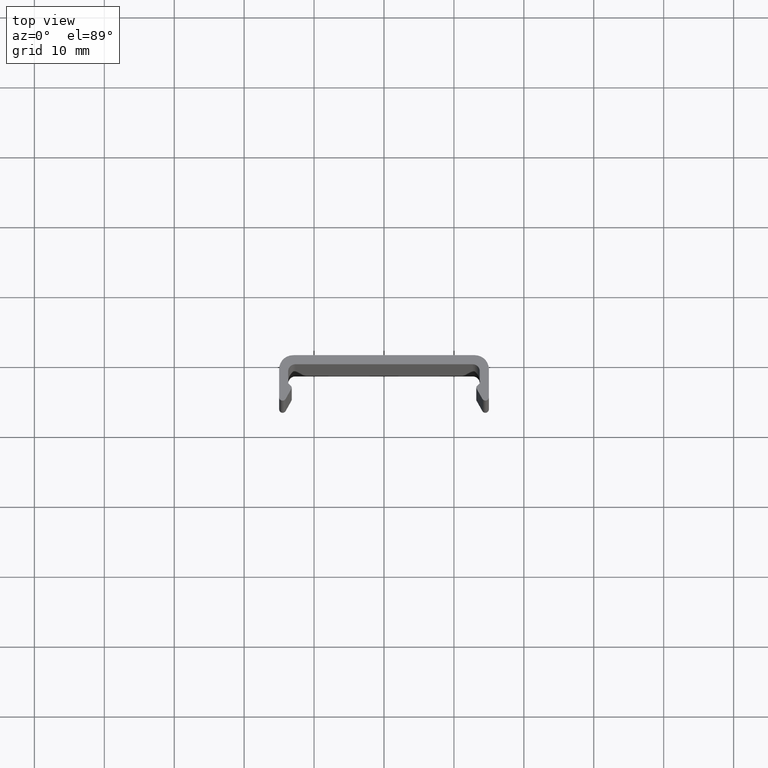
[diagram: clean part render]
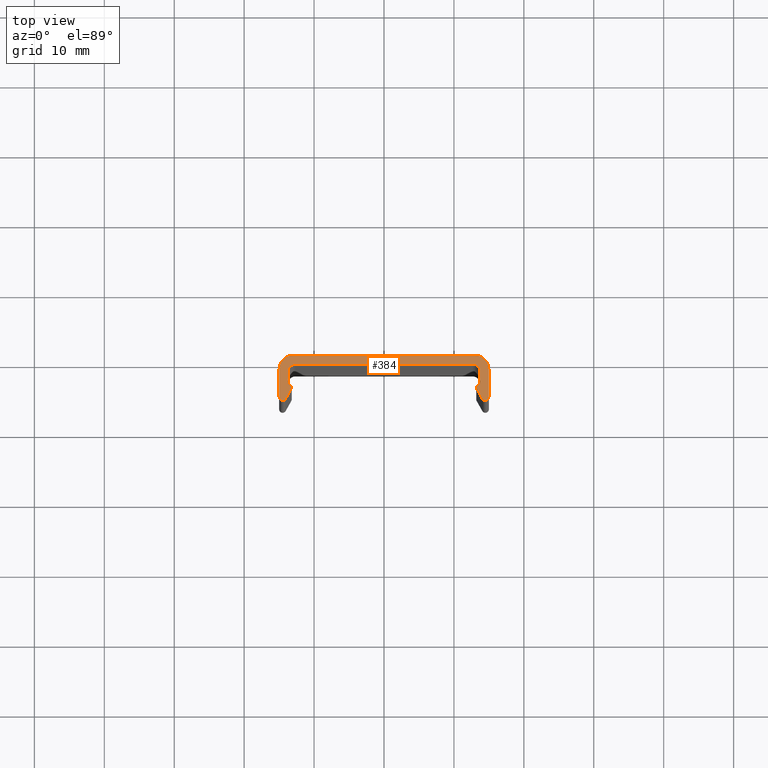
[diagram: same view with one face highlighted and labeled with its STEP entity id]
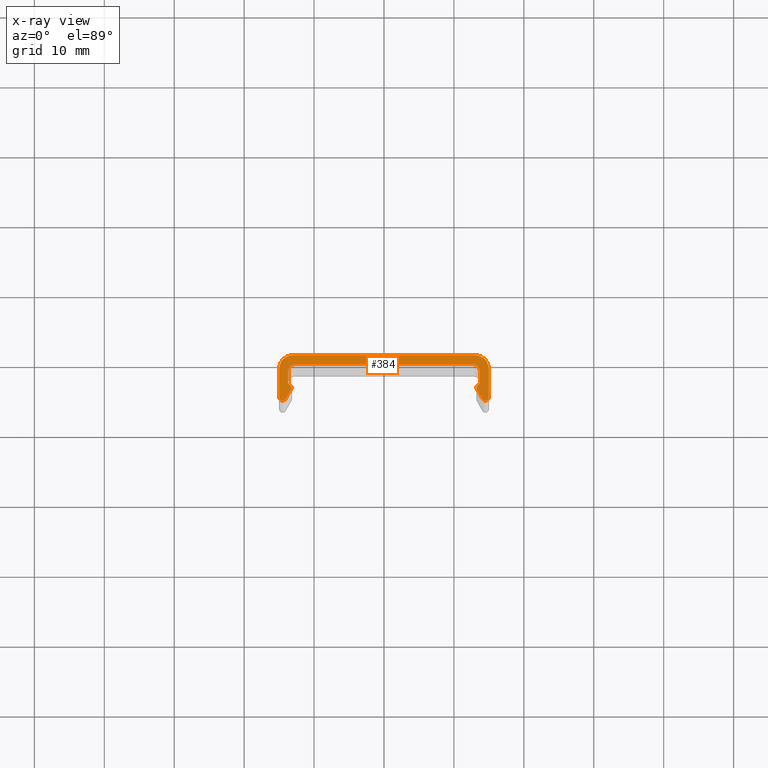
[diagram: x-ray of the same camera — body ghosted, the highlighted face saturated]
A machine part, top view. The second image highlights one B-rep face of the part: STEP entity #384.
The next image is the same camera in x-ray: the body ghosted, the highlighted face saturated — about 0% of this face is hidden behind the body in this view.
In plain terms, the highlighted planar face has unit normal (0, 0, 1).
Its self-contained STEP definition (entity closure, byte-faithful):
#15=CIRCLE('',#389,1.);
#17=CIRCLE('',#394,0.299999999999869);
#19=CIRCLE('',#398,0.499999999999943);
#21=CIRCLE('',#402,2.00000000000017);
#23=CIRCLE('',#405,2.00000000000017);
#25=CIRCLE('',#409,0.499999999999943);
#27=CIRCLE('',#413,0.299999999999869);
#29=CIRCLE('',#418,1.);
#58=FACE_OUTER_BOUND('',#78,.T.);
#78=EDGE_LOOP('',(#335,#336,#337,#338,#339,#340,#341,#342,#343,#344,#345,
#346,#347,#348,#349,#350,#351,#352));
#79=LINE('',#539,#117);
#84=LINE('',#553,#122);
#87=LINE('',#559,#125);
#91=LINE('',#571,#129);
#95=LINE('',#583,#133);
#101=LINE('',#604,#139);
#105=LINE('',#616,#143);
#109=LINE('',#628,#147);
#112=LINE('',#634,#150);
#116=LINE('',#644,#154);
#117=VECTOR('',#427,25.3999999999986);
#122=VECTOR('',#440,1.70573593128281);
#125=VECTOR('',#445,0.582842712478441);
#129=VECTOR('',#457,1.68430994773039);
#133=VECTOR('',#469,4.00000000000333);
#139=VECTOR('',#489,3.99999999998933);
#143=VECTOR('',#501,1.68430994772404);
#147=VECTOR('',#513,0.582842712475961);
#150=VECTOR('',#518,1.7057359312764);
#154=VECTOR('',#532,25.9999999999983);
#155=VERTEX_POINT('',#537);
#156=VERTEX_POINT('',#538);
#159=VERTEX_POINT('',#546);
#161=VERTEX_POINT('',#552);
#163=VERTEX_POINT('',#558);
#165=VERTEX_POINT('',#564);
#167=VERTEX_POINT('',#570);
#169=VERTEX_POINT('',#576);
#171=VERTEX_POINT('',#582);
#173=VERTEX_POINT('',#588);
#175=VERTEX_POINT('',#594);
#176=VERTEX_POINT('',#595);
#179=VERTEX_POINT('',#603);
#181=VERTEX_POINT('',#609);
#183=VERTEX_POINT('',#615);
#185=VERTEX_POINT('',#621);
#187=VERTEX_POINT('',#627);
#189=VERTEX_POINT('',#633);
#191=EDGE_CURVE('',#155,#156,#79,.T.);
#195=EDGE_CURVE('',#156,#159,#15,.T.);
#198=EDGE_CURVE('',#159,#161,#84,.T.);
#201=EDGE_CURVE('',#161,#163,#87,.T.);
#204=EDGE_CURVE('',#163,#165,#17,.T.);
#207=EDGE_CURVE('',#165,#167,#91,.T.);
#210=EDGE_CURVE('',#167,#169,#19,.T.);
#213=EDGE_CURVE('',#169,#171,#95,.T.);
#216=EDGE_CURVE('',#171,#173,#21,.T.);
#219=EDGE_CURVE('',#175,#176,#23,.T.);
#223=EDGE_CURVE('',#176,#179,#101,.T.);
#226=EDGE_CURVE('',#179,#181,#25,.T.);
#229=EDGE_CURVE('',#181,#183,#105,.T.);
#232=EDGE_CURVE('',#183,#185,#27,.T.);
#235=EDGE_CURVE('',#185,#187,#109,.T.);
#238=EDGE_CURVE('',#187,#189,#112,.T.);
#241=EDGE_CURVE('',#189,#155,#29,.T.);
#244=EDGE_CURVE('',#175,#173,#116,.T.);
#335=ORIENTED_EDGE('',*,*,#216,.T.);
#336=ORIENTED_EDGE('',*,*,#244,.F.);
#337=ORIENTED_EDGE('',*,*,#219,.T.);
#338=ORIENTED_EDGE('',*,*,#223,.T.);
#339=ORIENTED_EDGE('',*,*,#226,.T.);
#340=ORIENTED_EDGE('',*,*,#229,.T.);
#341=ORIENTED_EDGE('',*,*,#232,.T.);
#342=ORIENTED_EDGE('',*,*,#235,.T.);
#343=ORIENTED_EDGE('',*,*,#238,.T.);
#344=ORIENTED_EDGE('',*,*,#241,.T.);
#345=ORIENTED_EDGE('',*,*,#191,.T.);
#346=ORIENTED_EDGE('',*,*,#195,.T.);
#347=ORIENTED_EDGE('',*,*,#198,.T.);
#348=ORIENTED_EDGE('',*,*,#201,.T.);
#349=ORIENTED_EDGE('',*,*,#204,.T.);
#350=ORIENTED_EDGE('',*,*,#207,.T.);
#351=ORIENTED_EDGE('',*,*,#210,.T.);
#352=ORIENTED_EDGE('',*,*,#213,.T.);
#364=PLANE('',#422);
#384=ADVANCED_FACE('',(#58),#364,.T.);
#389=AXIS2_PLACEMENT_3D('',#547,#433,#434);
#394=AXIS2_PLACEMENT_3D('',#565,#450,#451);
#398=AXIS2_PLACEMENT_3D('',#577,#462,#463);
#402=AXIS2_PLACEMENT_3D('',#589,#474,#475);
#405=AXIS2_PLACEMENT_3D('',#596,#481,#482);
#409=AXIS2_PLACEMENT_3D('',#610,#494,#495);
#413=AXIS2_PLACEMENT_3D('',#622,#506,#507);
#418=AXIS2_PLACEMENT_3D('',#639,#523,#524);
#422=AXIS2_PLACEMENT_3D('',#645,#533,#534);
#427=DIRECTION('',(1.,-4.37095678986306E-17,0.));
#433=DIRECTION('center_axis',(0.,0.,-1.));
#434=DIRECTION('ref_axis',(1.,0.,0.));
#440=DIRECTION('',(0.,-1.,0.));
#445=DIRECTION('',(-0.707106781186827,-0.707106781186267,0.));
#450=DIRECTION('center_axis',(0.,0.,1.));
#451=DIRECTION('ref_axis',(0.707106781186275,-0.70710678118682,0.));
#457=DIRECTION('',(0.490218619946084,-0.871599509326478,0.));
#462=DIRECTION('center_axis',(0.,0.,1.));
#463=DIRECTION('ref_axis',(0.871599509326479,0.490218619946083,0.));
#469=DIRECTION('',(-5.55111512312116E-16,1.,0.));
#474=DIRECTION('center_axis',(0.,0.,1.));
#475=DIRECTION('ref_axis',(-1.,1.11022302462506E-15,0.));
#481=DIRECTION('center_axis',(0.,0.,1.));
#482=DIRECTION('ref_axis',(0.,-1.,0.));
#489=DIRECTION('',(0.,-1.,0.));
#494=DIRECTION('center_axis',(0.,0.,1.));
#495=DIRECTION('ref_axis',(1.,-4.44089209850113E-15,0.));
#501=DIRECTION('',(0.4902186199465,0.871599509326244,0.));
#506=DIRECTION('center_axis',(0.,0.,1.));
#507=DIRECTION('ref_axis',(-0.871599509326245,0.490218619946498,0.));
#513=DIRECTION('',(-0.707106781186266,0.707106781186829,0.));
#518=DIRECTION('',(-6.50876260661505E-15,1.,0.));
#523=DIRECTION('center_axis',(0.,0.,-1.));
#524=DIRECTION('ref_axis',(0.,1.,0.));
#532=DIRECTION('',(1.,4.33257765707378E-16,0.));
#533=DIRECTION('center_axis',(0.,0.,1.));
#534=DIRECTION('ref_axis',(1.,0.,0.));
#537=CARTESIAN_POINT('',(-12.6999999999994,-1.29999999999998,100.));
#538=CARTESIAN_POINT('',(12.6999999999992,-1.29999999999998,100.));
#539=CARTESIAN_POINT('',(6.3499999999996,-1.29999999999998,100.));
#546=CARTESIAN_POINT('',(13.6999999999992,-2.29999999999998,100.));
#547=CARTESIAN_POINT('Origin',(12.6999999999992,-2.29999999999998,100.));
#552=CARTESIAN_POINT('',(13.6999999999992,-4.00573593128279,100.));
#553=CARTESIAN_POINT('',(13.6999999999992,-4.75286796564139,100.));
#558=CARTESIAN_POINT('',(13.2878679656404,-4.41786796564129,100.));
#559=CARTESIAN_POINT('',(9.69536796563798,-8.01036796564084,100.));
#564=CARTESIAN_POINT('',(13.2385201471983,-4.777065585981,100.));
#565=CARTESIAN_POINT('Origin',(13.4999999999962,-4.62999999999724,100.));
#570=CARTESIAN_POINT('',(14.0642002453362,-6.24510930997651,100.));
#571=CARTESIAN_POINT('',(12.2151030269552,-2.95744914640488,100.));
#576=CARTESIAN_POINT('',(14.9999999999993,-6.0000000000035,100.));
#577=CARTESIAN_POINT('Origin',(14.4999999999994,-6.0000000000035,100.));
#582=CARTESIAN_POINT('',(14.9999999999993,-2.00000000000017,100.));
#583=CARTESIAN_POINT('',(14.9999999999993,-3.75000000000008,100.));
#588=CARTESIAN_POINT('',(12.9999999999991,0.,100.));
#589=CARTESIAN_POINT('Origin',(12.9999999999991,-2.00000000000017,100.));
#594=CARTESIAN_POINT('',(-12.9999999999991,0.,100.));
#595=CARTESIAN_POINT('',(-14.9999999999993,-2.00000000000017,100.));
#596=CARTESIAN_POINT('Origin',(-12.9999999999991,-2.00000000000017,100.));
#603=CARTESIAN_POINT('',(-14.9999999999993,-5.9999999999895,100.));
#604=CARTESIAN_POINT('',(-14.9999999999993,-5.74999999999475,100.));
#609=CARTESIAN_POINT('',(-14.0642002453363,-6.24510930996272,100.));
#610=CARTESIAN_POINT('Origin',(-14.4999999999994,-5.9999999999895,100.));
#615=CARTESIAN_POINT('',(-13.2385201472009,-4.77706558597314,100.));
#616=CARTESIAN_POINT('',(-11.8022629778876,-2.22342728439992,100.));
#621=CARTESIAN_POINT('',(-13.2878679656427,-4.41786796563346,100.));
#622=CARTESIAN_POINT('Origin',(-13.4999999999986,-4.62999999998925,100.));
#627=CARTESIAN_POINT('',(-13.6999999999994,-4.00573593127639,100.));
#628=CARTESIAN_POINT('',(-9.90143398282139,-7.80430194845744,100.));
#633=CARTESIAN_POINT('',(-13.6999999999994,-2.29999999999998,100.));
#634=CARTESIAN_POINT('',(-13.6999999999994,-3.90000000000003,100.));
#639=CARTESIAN_POINT('Origin',(-12.6999999999994,-2.29999999999998,100.));
#644=CARTESIAN_POINT('',(10.25,8.88178419700125E-15,100.));
#645=CARTESIAN_POINT('Origin',(4.44089209850063E-15,-5.49999999999999,100.));